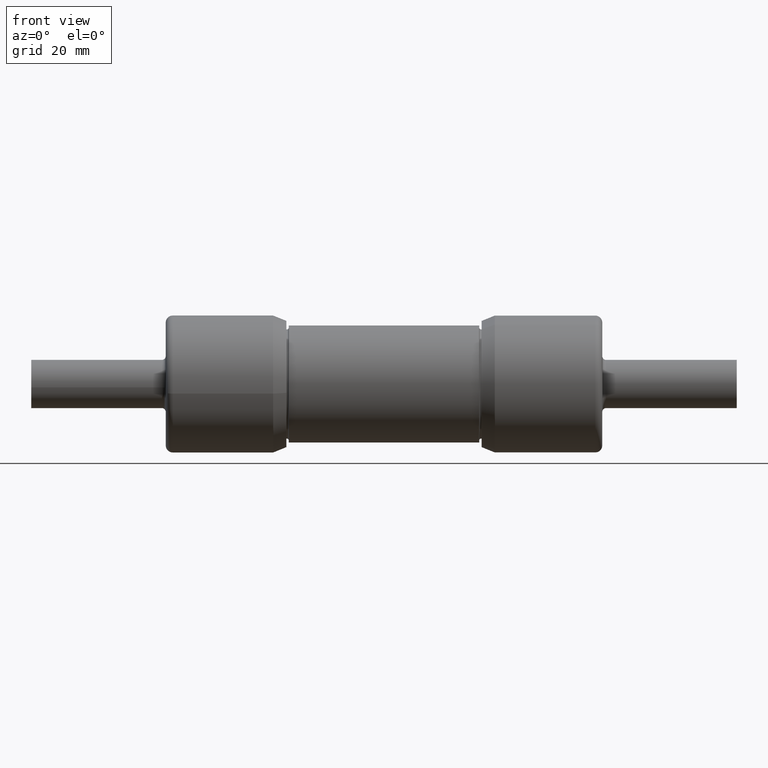
[diagram: clean part render]
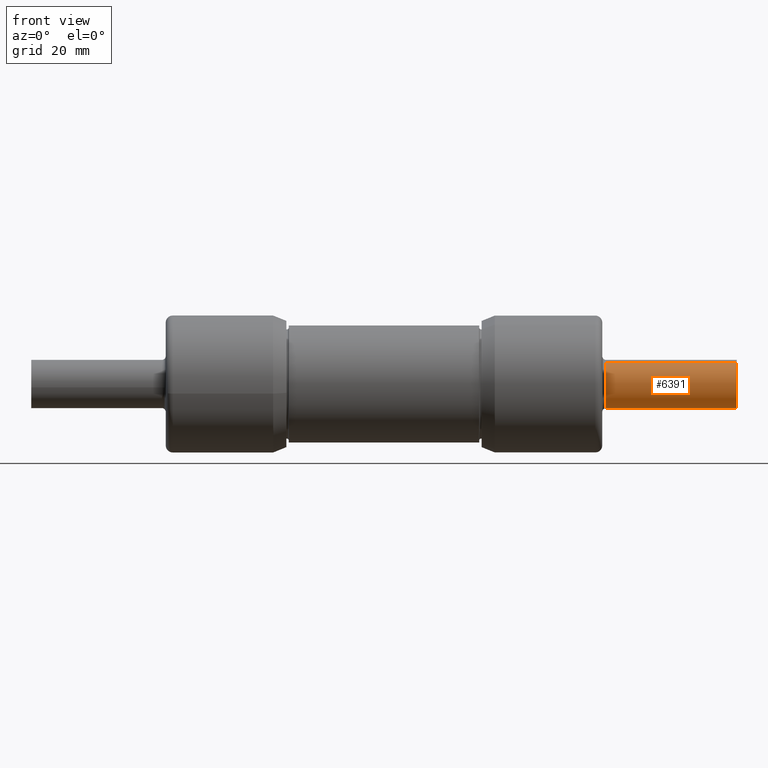
[diagram: same view with one face highlighted and labeled with its STEP entity id]
A machine part, front view. The second image highlights one B-rep face of the part: STEP entity #6391.
In plain terms, the highlighted cylindrical surface (edge-blend (fillet) strip) has radius 3.9624 mm, axis along (-1, -0, -0).
Its self-contained STEP definition (entity closure, byte-faithful):
#291 = VECTOR ( 'NONE', #4267, 39.37007874015748143 ) ;
#534 = CYLINDRICAL_SURFACE ( 'NONE', #6842, 0.1560000000000005826 ) ;
#663 = ORIENTED_EDGE ( 'NONE', *, *, #5834, .T. ) ;
#672 = CARTESIAN_POINT ( 'NONE',  ( 3.458500000000000352, 0.07726999799152334258, -0.1355188083270731092 ) ) ;
#718 = CIRCLE ( 'NONE', #2684, 0.1560000000000005826 ) ;
#818 = CARTESIAN_POINT ( 'NONE',  ( 3.458500000000000352, 1.125002733115387960E-17, -2.482736238817999428E-17 ) ) ;
#1082 = ORIENTED_EDGE ( 'NONE', *, *, #3487, .T. ) ;
#1467 = CIRCLE ( 'NONE', #5037, 0.1560000000000005826 ) ;
#1640 = CARTESIAN_POINT ( 'NONE',  ( 2.588499999999999801, 0.07726999799152362014, -0.1355188083270736088 ) ) ;
#1896 = FACE_OUTER_BOUND ( 'NONE', #2277, .T. ) ;
#2277 = EDGE_LOOP ( 'NONE', ( #3227, #663, #3618, #1082 ) ) ;
#2280 = VERTEX_POINT ( 'NONE', #3930 ) ;
#2668 = DIRECTION ( 'NONE',  ( 1.000000000000000000, 3.268530736865042060E-17, 1.387778780781465705E-17 ) ) ;
#2684 = AXIS2_PLACEMENT_3D ( 'NONE', #818, #5185, #4694 ) ;
#3018 = LINE ( 'NONE', #3748, #3853 ) ;
#3144 = CARTESIAN_POINT ( 'NONE',  ( 2.588499999999999801, -1.718619007957251097E-17, -3.690103778097871797E-17 ) ) ;
#3227 = ORIENTED_EDGE ( 'NONE', *, *, #6452, .F. ) ;
#3260 = DIRECTION ( 'NONE',  ( -1.000000000000000000, -3.268530736865042060E-17, -1.387778780781465705E-17 ) ) ;
#3303 = CARTESIAN_POINT ( 'NONE',  ( 3.458500000000000352, -0.07726999799152360626, 0.1355188083270735810 ) ) ;
#3487 = EDGE_CURVE ( 'NONE', #2280, #4644, #1467, .T. ) ;
#3618 = ORIENTED_EDGE ( 'NONE', *, *, #6986, .T. ) ;
#3718 = VERTEX_POINT ( 'NONE', #3303 ) ;
#3748 = CARTESIAN_POINT ( 'NONE',  ( 2.588499999999999801, -0.07726999799152363402, 0.1355188083270735533 ) ) ;
#3853 = VECTOR ( 'NONE', #4183, 39.37007874015748143 ) ;
#3930 = CARTESIAN_POINT ( 'NONE',  ( 2.613499999999999712, -0.07726999799152332871, 0.1355188083270730814 ) ) ;
#4183 = DIRECTION ( 'NONE',  ( -1.000000000000000000, -3.268530736865042060E-17, -1.387778780781465705E-17 ) ) ;
#4256 = CARTESIAN_POINT ( 'NONE',  ( 2.613499999999999712, 0.07726999799152334258, -0.1355188083270731092 ) ) ;
#4267 = DIRECTION ( 'NONE',  ( -1.000000000000000000, -3.268530736865042060E-17, -1.387778780781465705E-17 ) ) ;
#4337 = LINE ( 'NONE', #1640, #291 ) ;
#4644 = VERTEX_POINT ( 'NONE', #4256 ) ;
#4694 = DIRECTION ( 'NONE',  ( 0.000000000000000000, -0.4953204999456624069, 0.8687103097889301573 ) ) ;
#4803 = DIRECTION ( 'NONE',  ( 0.000000000000000000, -0.4953204999456624069, 0.8687103097889301573 ) ) ;
#4861 = DIRECTION ( 'NONE',  ( 0.000000000000000000, 0.4953204999456624069, -0.8687103097889301573 ) ) ;
#5037 = AXIS2_PLACEMENT_3D ( 'NONE', #5398, #2668, #4861 ) ;
#5185 = DIRECTION ( 'NONE',  ( -1.000000000000000000, -3.268530736865042060E-17, -1.387778780781465705E-17 ) ) ;
#5398 = CARTESIAN_POINT ( 'NONE',  ( 2.613499999999999712, -1.636905739535624984E-17, -3.655409308578317906E-17 ) ) ;
#5834 = EDGE_CURVE ( 'NONE', #6529, #3718, #718, .T. ) ;
#6391 = ADVANCED_FACE ( 'NONE', ( #1896 ), #534, .T. ) ;
#6452 = EDGE_CURVE ( 'NONE', #6529, #4644, #4337, .T. ) ;
#6529 = VERTEX_POINT ( 'NONE', #672 ) ;
#6842 = AXIS2_PLACEMENT_3D ( 'NONE', #3144, #3260, #4803 ) ;
#6986 = EDGE_CURVE ( 'NONE', #3718, #2280, #3018, .T. ) ;